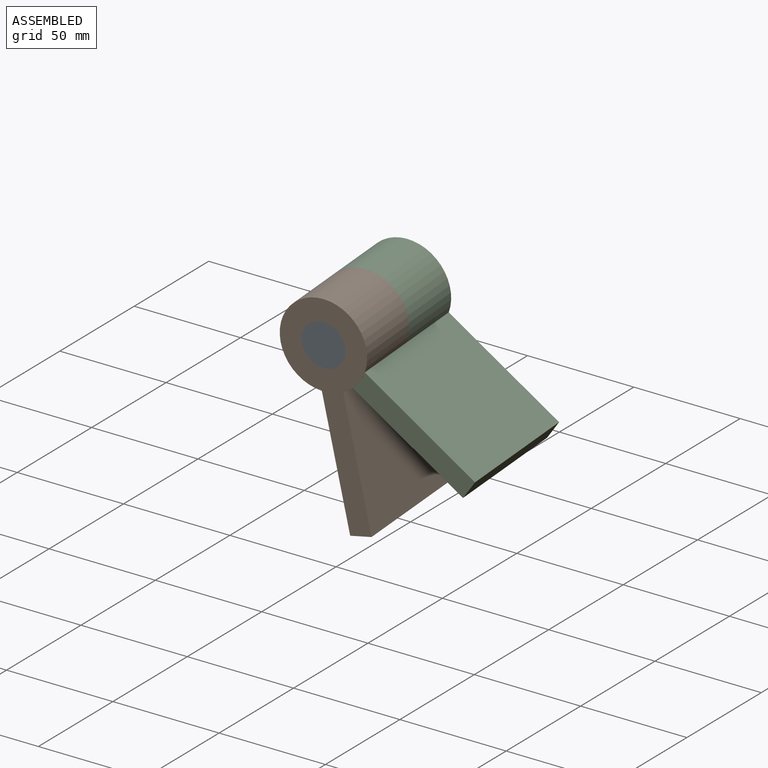
[diagram: assembled view]
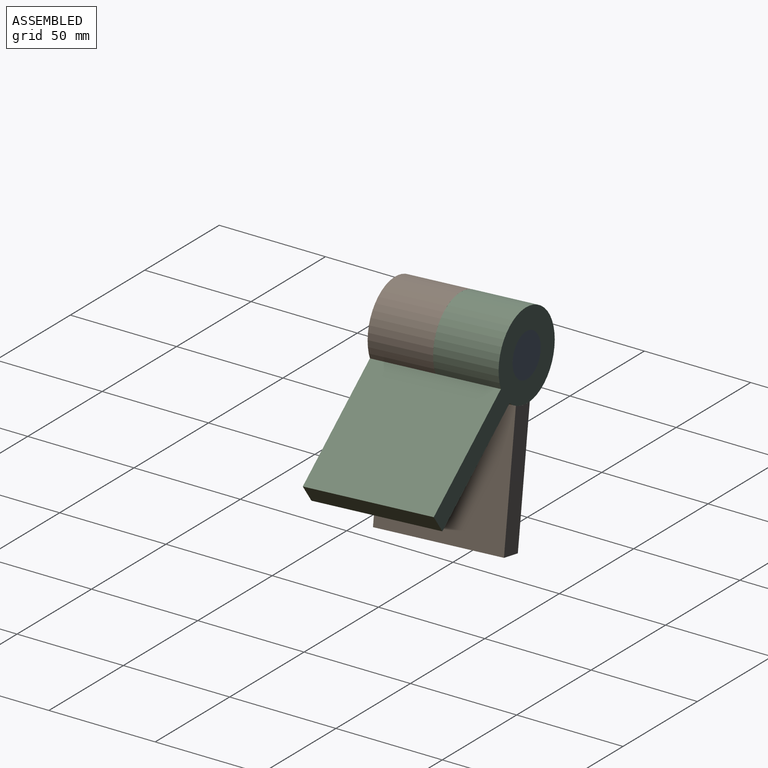
[diagram: assembled view, second angle]
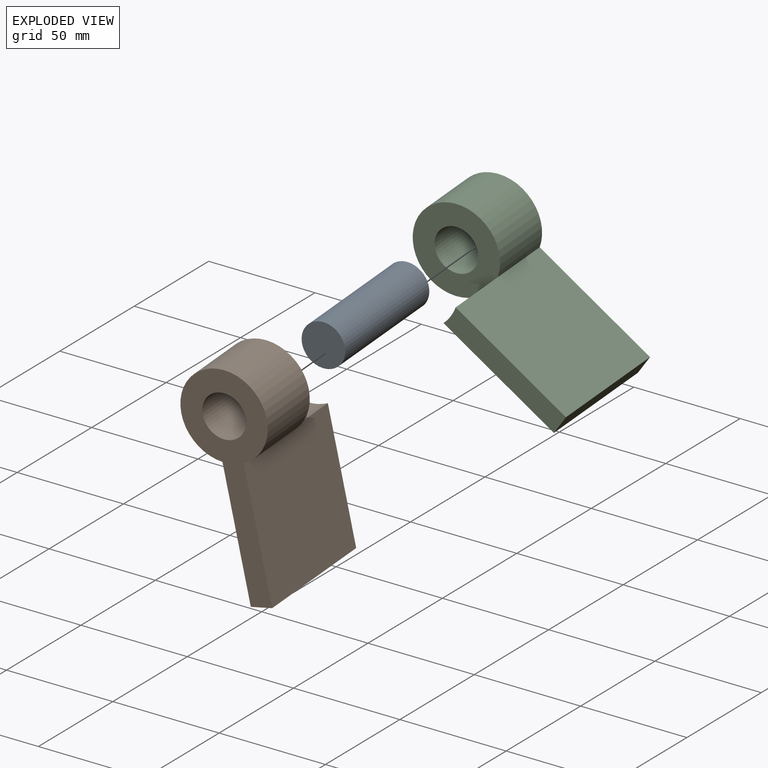
[diagram: exploded view]
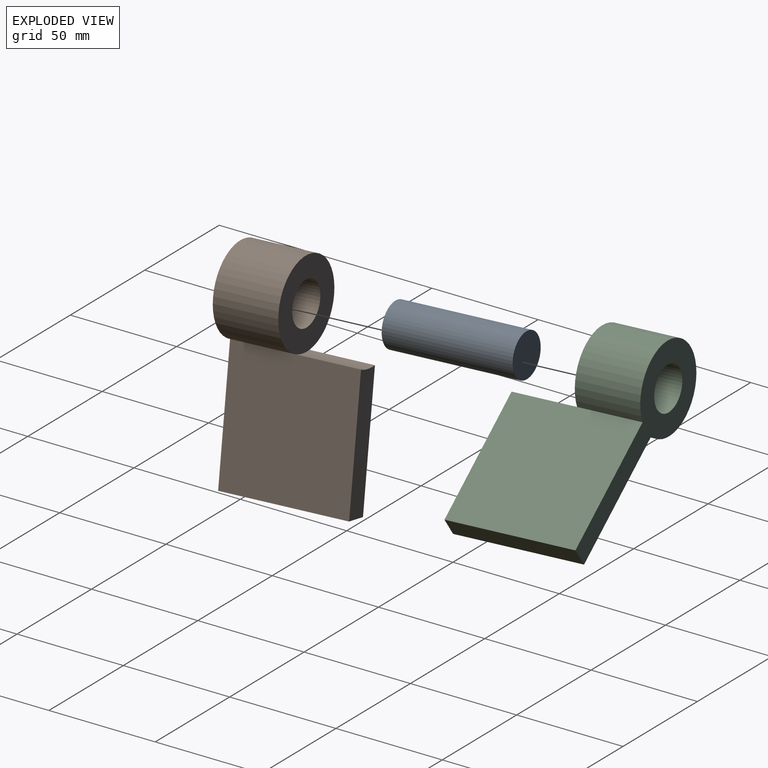
[diagram: exploded view, second angle]
ASSEMBLY  parts=3 mates=3
PART A: 3 faces, bbox 20x60x20 mm
  f0: cylinder r=10mm len=60mm, axis (0,1,0), area 3769.9mm2, adj f1,f2
  f1: plane 20x20mm, normal (0,-1,0), area 314.2mm2, adj f0
  f2: plane 20x20mm, normal (0,1,0), area 314.2mm2, adj f0
PART B: 9 faces, bbox 100x60x40 mm
  f0: cylinder r=20mm len=40mm, axis (0,1,0), area 3466.7mm2, adj f2,f3,f5,f7
  f1: cylinder r=10mm len=30mm, axis (0,1,0), area 1885mm2, adj f2,f3
  f2: plane 40x40mm, normal (0,-1,0), area 942.5mm2, adj f0,f1,f4
  f3: plane 100x40mm, normal (0,1,0), area 1544.6mm2, adj f0,f1,f5,f6,f7
  f4: cylinder r=20mm len=30mm, axis (0,1,0), area 303.2mm2, adj f2,f5,f7,f8
  f5: plane 60.64x60mm, normal (0,0,-1), area 3638.1mm2, adj f0,f3,f4,f6,f8
  f6: plane 60x10mm, normal (1,0,0), area 600mm2, adj f3,f5,f7,f8
  f7: plane 60.64x60mm, normal (0,0,1), area 3638.1mm2, adj f0,f3,f4,f6,f8
  f8: plane 60.64x10mm, normal (0,-1,0), area 602.1mm2, adj f4,f5,f6,f7
PART C: same geometry as B
PLACE A rot(axis=(0.03,1,0.08),35deg) t=(32.74,72.61,-6.08)mm
PLACE B rot(axis=(-0.77,-0.03,0.64),180deg) t=(35.16,12.7,-8.13)mm
PLACE C rot(axis=(0.03,1,0.08),35deg) t=(32.74,72.61,-6.08)mm fixed
MATE fastened A.f0 <-> C.f0  axis (-0.04,1,0.03) through (32.74,72.61,-6.08)mm
MATE planar B.f0 <-> A.f0  axis (0.04,-1,-0.03) through (35.16,12.7,-8.13)mm
MATE cylindrical A.f0 <-> B.f0  axis (0.04,-1,-0.03) through (35.16,12.7,-8.13)mm
